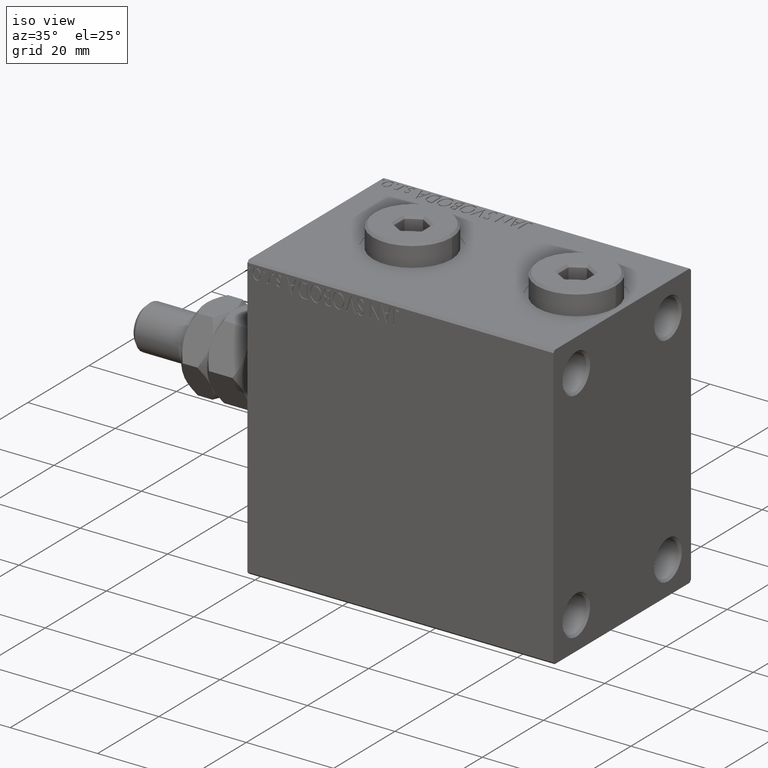
[diagram: clean part render]
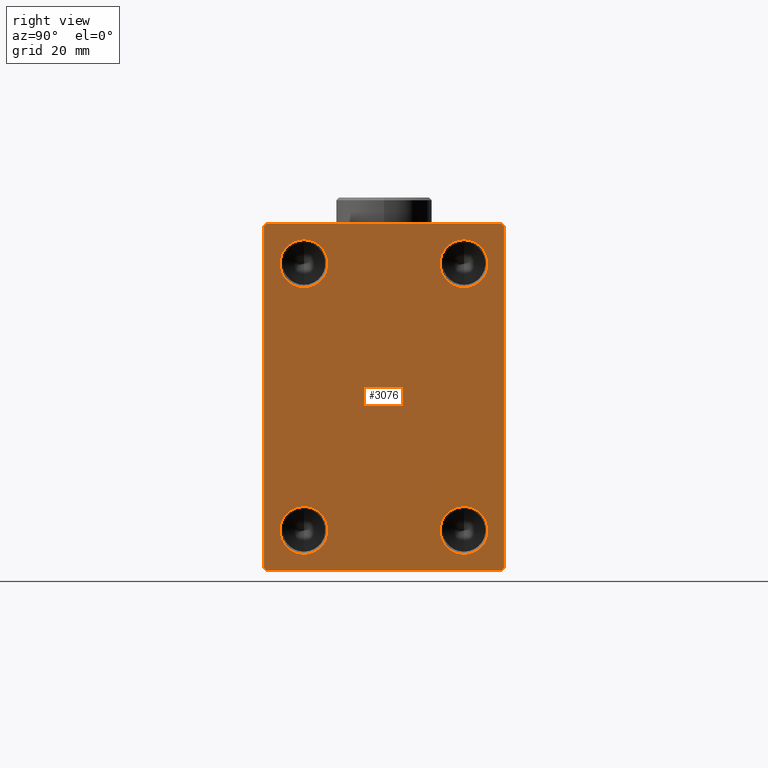
[diagram: tour spotlight — one face highlighted and labeled with its STEP entity id]
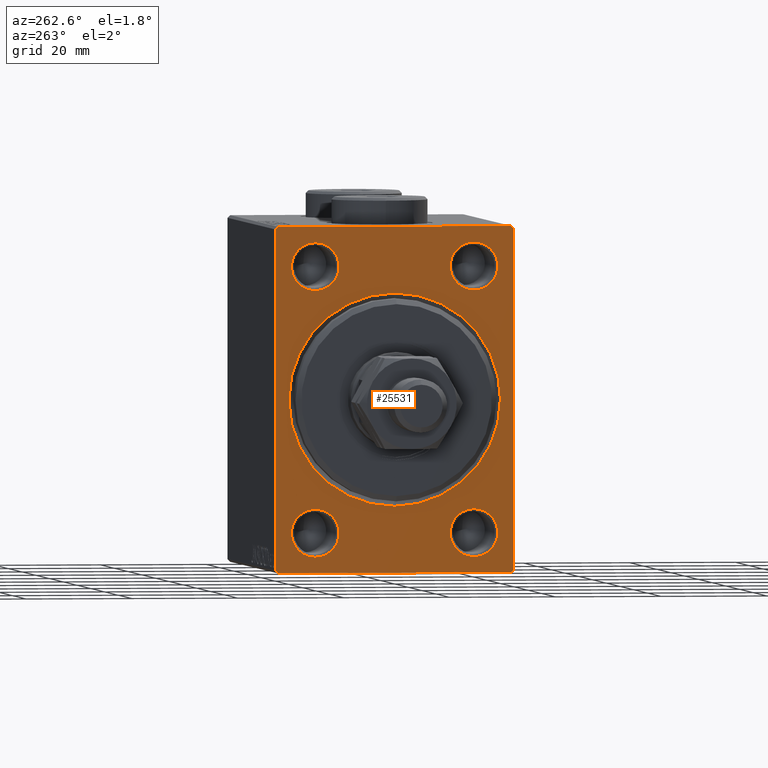
[diagram: tour spotlight — one face highlighted and labeled with its STEP entity id]
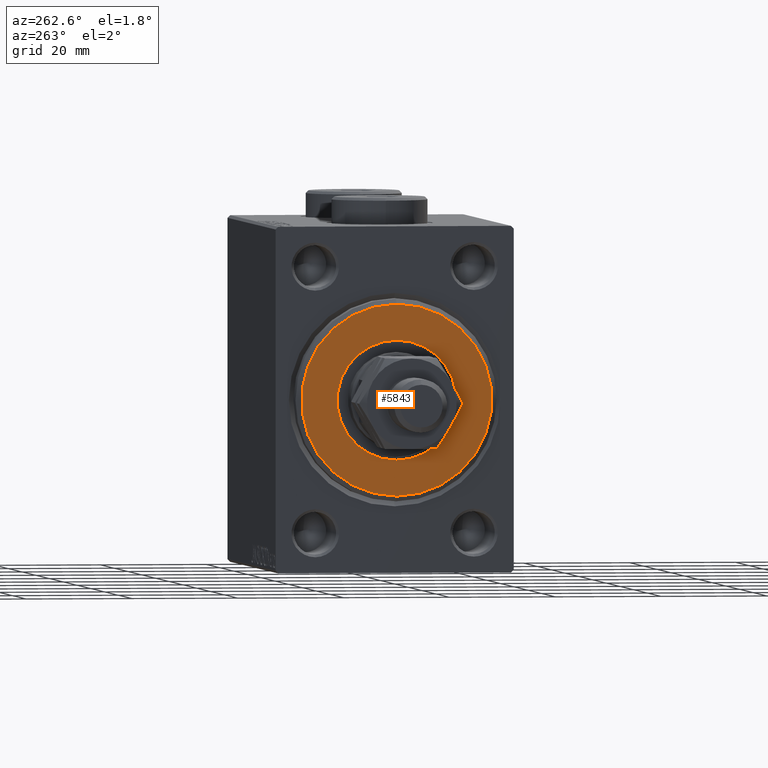
[diagram: tour spotlight — one face highlighted and labeled with its STEP entity id]
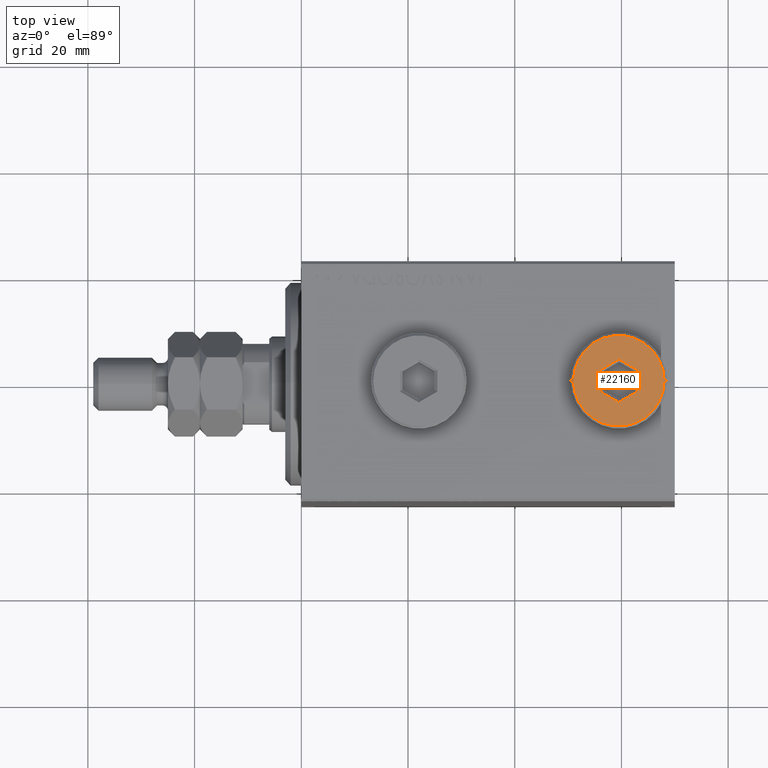
[diagram: tour spotlight — one face highlighted and labeled with its STEP entity id]
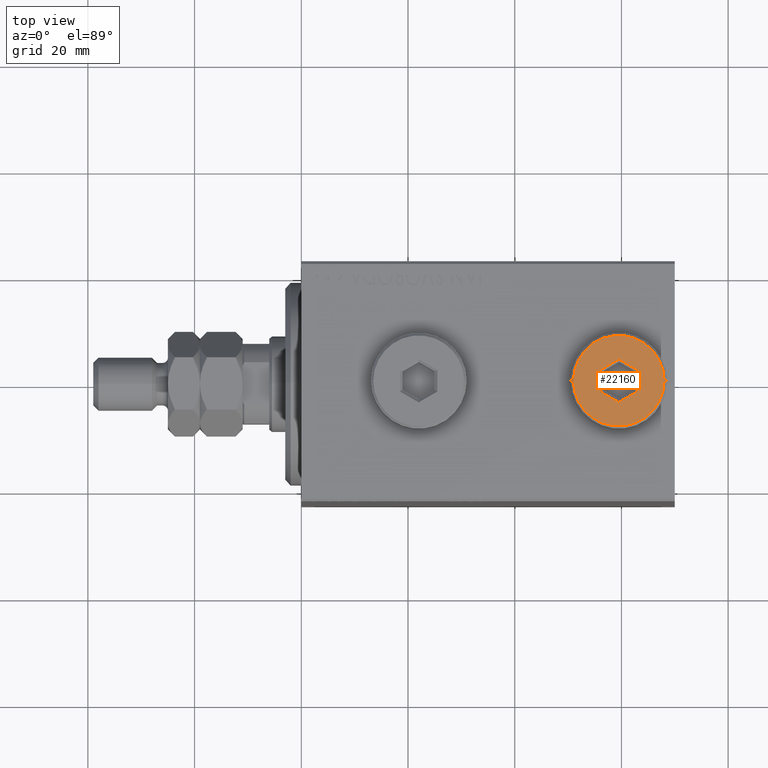
[diagram: tour spotlight — one face highlighted and labeled with its STEP entity id]
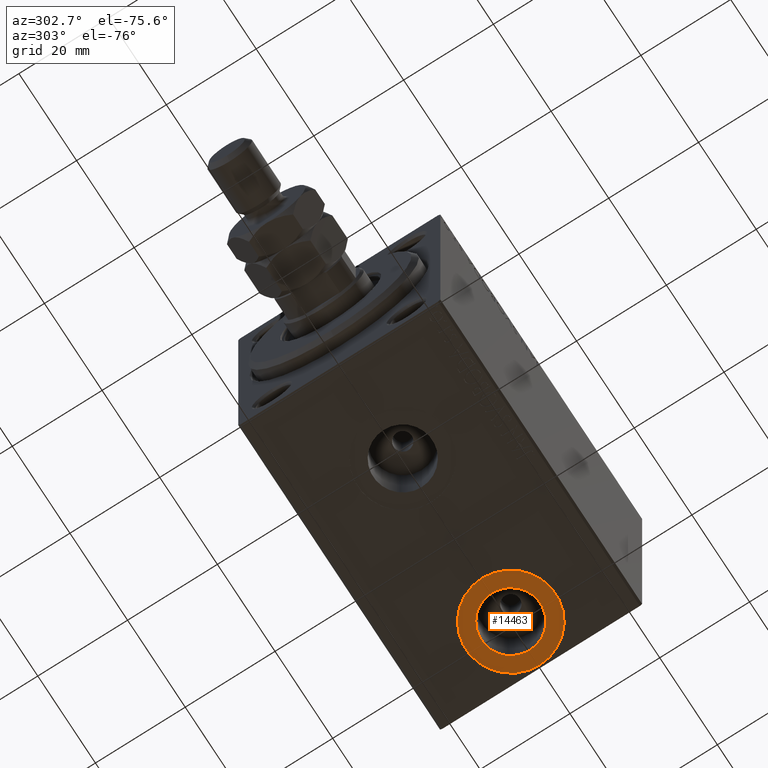
[diagram: tour spotlight — one face highlighted and labeled with its STEP entity id]
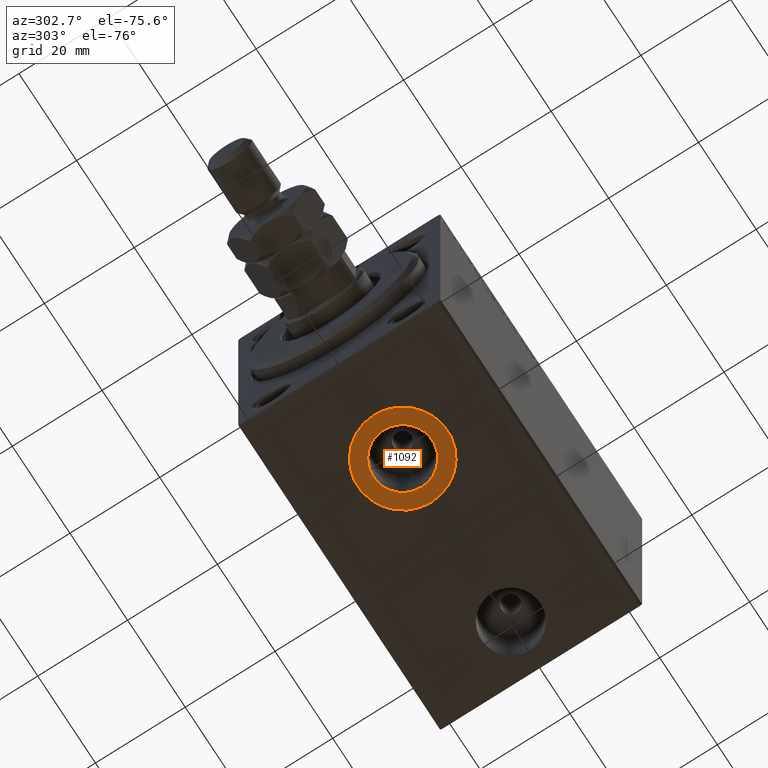
[diagram: tour spotlight — one face highlighted and labeled with its STEP entity id]
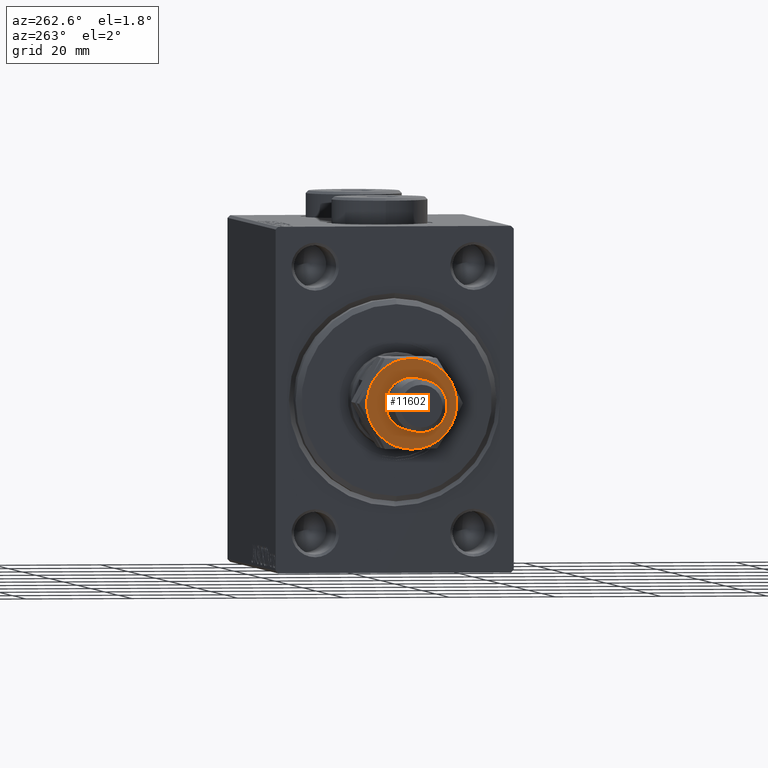
[diagram: tour spotlight — one face highlighted and labeled with its STEP entity id]
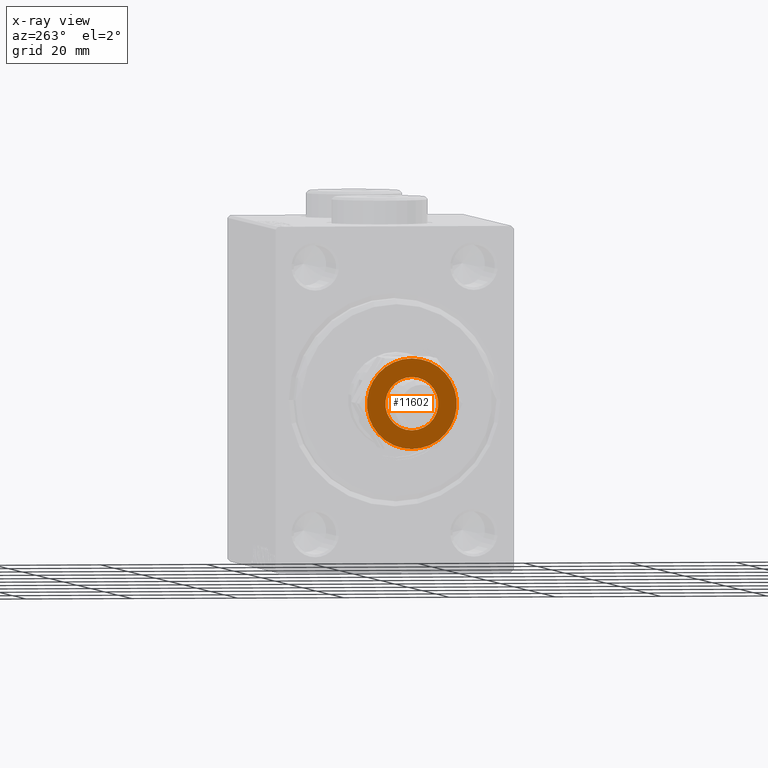
[diagram: x-ray of the same camera — body ghosted, this tour face saturated]
A machine part: a face-by-face anatomy tour. The part has 984 B-rep faces; the first image is the clean iso view, then the 8 largest visible faces are spotlighted one at a time (largest first), each with its STEP entity span.

Face 1 — right view, entity #3076. In plain terms, the highlighted planar face has unit normal (1, 0, 0).
Definition (entity closure, byte-faithful):
#69 = FACE_BOUND ( 'NONE', #28586, .T. ) ;
#295 = DIRECTION ( 'NONE',  ( 1.000000000000000000, 0.000000000000000000, 0.000000000000000000 ) ) ;
#934 = CARTESIAN_POINT ( 'NONE',  ( 70.00000000000000000, 21.99999999999999289, -32.50000000000000711 ) ) ;
#1005 = LINE ( 'NONE', #40830, #25685 ) ;
#1007 = LINE ( 'NONE', #26314, #19560 ) ;
#1270 = AXIS2_PLACEMENT_3D ( 'NONE', #9330, #38397, #2371 ) ;
#1336 = CARTESIAN_POINT ( 'NONE',  ( 70.00000000000000000, -22.49999999999999289, -32.50000000000000711 ) ) ;
#1701 = EDGE_CURVE ( 'NONE', #39068, #5214, #29275, .T. ) ;
#1795 = EDGE_CURVE ( 'NONE', #16673, #46168, #19741, .T. ) ;
#2207 = ORIENTED_EDGE ( 'NONE', *, *, #35198, .F. ) ;
#2371 = DIRECTION ( 'NONE',  ( 0.000000000000000000, 0.000000000000000000, -1.000000000000000000 ) ) ;
#2628 = ORIENTED_EDGE ( 'NONE', *, *, #6473, .T. ) ;
#2652 = CIRCLE ( 'NONE', #9531, 4.499999999999976019 ) ;
#2681 = DIRECTION ( 'NONE',  ( 1.000000000000000000, -0.000000000000000000, -0.000000000000000000 ) ) ;
#2780 = DIRECTION ( 'NONE',  ( 1.000000000000000000, -0.000000000000000000, -0.000000000000000000 ) ) ;
#3076 = ADVANCED_FACE ( 'NONE', ( #43931, #32521, #36325, #69, #14648 ), #25605, .T. ) ;
#3185 = AXIS2_PLACEMENT_3D ( 'NONE', #44091, #25764, #37424 ) ;
#3818 = ORIENTED_EDGE ( 'NONE', *, *, #34433, .T. ) ;
#4112 = CIRCLE ( 'NONE', #35378, 4.499999999999976019 ) ;
#4311 = CIRCLE ( 'NONE', #31020, 4.499999999999976019 ) ;
#5214 = VERTEX_POINT ( 'NONE', #14226 ) ;
#5336 = CARTESIAN_POINT ( 'NONE',  ( 70.00000000000000000, 27.25000000000031264, -27.24999999999955236 ) ) ;
#6285 = CARTESIAN_POINT ( 'NONE',  ( 70.00000000000000000, 15.00000000000000178, 25.00000000000000000 ) ) ;
#6346 = CARTESIAN_POINT ( 'NONE',  ( 70.00000000000000000, -21.99999999999997868, 32.49999999999998579 ) ) ;
#6473 = EDGE_CURVE ( 'NONE', #35402, #33749, #1007, .T. ) ;
#6858 = EDGE_CURVE ( 'NONE', #26647, #27385, #13452, .T. ) ;
#6975 = EDGE_CURVE ( 'NONE', #41217, #35402, #46703, .T. ) ;
#7051 = ORIENTED_EDGE ( 'NONE', *, *, #28356, .T. ) ;
#7474 = CARTESIAN_POINT ( 'NONE',  ( 70.00000000000000000, 0.000000000000000000, 0.000000000000000000 ) ) ;
#7528 = CARTESIAN_POINT ( 'NONE',  ( 70.00000000000000000, -21.99999999999999289, -32.50000000000000711 ) ) ;
#7932 = EDGE_CURVE ( 'NONE', #23317, #16013, #44695, .T. ) ;
#8187 = DIRECTION ( 'NONE',  ( -0.000000000000000000, -0.7071067811865574537, 0.7071067811865376918 ) ) ;
#8292 = ORIENTED_EDGE ( 'NONE', *, *, #17652, .F. ) ;
#8827 = EDGE_LOOP ( 'NONE', ( #13976, #21836 ) ) ;
#9330 = CARTESIAN_POINT ( 'NONE',  ( 70.00000000000000000, -15.00000000000000000, 25.00000000000000000 ) ) ;
#9531 = AXIS2_PLACEMENT_3D ( 'NONE', #20942, #2780, #17362 ) ;
#10273 = DIRECTION ( 'NONE',  ( 0.000000000000000000, 0.000000000000000000, -1.000000000000000000 ) ) ;
#10316 = CARTESIAN_POINT ( 'NONE',  ( 70.00000000000000000, -15.00000000000000000, 20.50000000000003197 ) ) ;
#10386 = EDGE_LOOP ( 'NONE', ( #17221, #37579 ) ) ;
#10806 = CARTESIAN_POINT ( 'NONE',  ( 70.00000000000000000, 21.99999999999998579, 32.49999999999999289 ) ) ;
#10920 = CARTESIAN_POINT ( 'NONE',  ( 70.00000000000000000, -15.00000000000000000, -25.00000000000000000 ) ) ;
#11049 = ORIENTED_EDGE ( 'NONE', *, *, #6975, .T. ) ;
#12120 = VECTOR ( 'NONE', #31101, 999.9999999999998863 ) ;
#12865 = EDGE_CURVE ( 'NONE', #46168, #41217, #45381, .T. ) ;
#12930 = CARTESIAN_POINT ( 'NONE',  ( 70.00000000000000000, -22.49999999999999289, 31.99999999999998579 ) ) ;
#13452 = CIRCLE ( 'NONE', #1270, 4.499999999999976019 ) ;
#13864 = CIRCLE ( 'NONE', #3185, 4.499999999999976019 ) ;
#13976 = ORIENTED_EDGE ( 'NONE', *, *, #40765, .F. ) ;
#14226 = CARTESIAN_POINT ( 'NONE',  ( 70.00000000000000000, -15.00000000000000000, -20.50000000000003197 ) ) ;
#14397 = CARTESIAN_POINT ( 'NONE',  ( 70.00000000000000000, -15.00000000000000000, -29.49999999999997158 ) ) ;
#14648 = FACE_OUTER_BOUND ( 'NONE', #24628, .T. ) ;
#14949 = ORIENTED_EDGE ( 'NONE', *, *, #1795, .T. ) ;
#15147 = LINE ( 'NONE', #22074, #30453 ) ;
#15381 = DIRECTION ( 'NONE',  ( 0.000000000000000000, -1.000000000000000000, -1.541976423090495633E-16 ) ) ;
#15830 = DIRECTION ( 'NONE',  ( 0.000000000000000000, -0.7071067811865474617, -0.7071067811865474617 ) ) ;
#15918 = DIRECTION ( 'NONE',  ( 0.000000000000000000, 1.000000000000000000, 0.000000000000000000 ) ) ;
#16013 = VERTEX_POINT ( 'NONE', #20633 ) ;
#16673 = VERTEX_POINT ( 'NONE', #7528 ) ;
#16798 = AXIS2_PLACEMENT_3D ( 'NONE', #31292, #21019, #10273 ) ;
#16830 = DIRECTION ( 'NONE',  ( 0.000000000000000000, 0.000000000000000000, -1.000000000000000000 ) ) ;
#17221 = ORIENTED_EDGE ( 'NONE', *, *, #18761, .F. ) ;
#17362 = DIRECTION ( 'NONE',  ( 0.000000000000000000, 0.000000000000000000, -1.000000000000000000 ) ) ;
#17652 = EDGE_CURVE ( 'NONE', #27385, #26647, #4112, .T. ) ;
#18590 = CARTESIAN_POINT ( 'NONE',  ( 70.00000000000000000, 22.50000000000000711, -32.50000000000000711 ) ) ;
#18733 = LINE ( 'NONE', #40633, #38905 ) ;
#18761 = EDGE_CURVE ( 'NONE', #5214, #39068, #2652, .T. ) ;
#19210 = DIRECTION ( 'NONE',  ( -0.000000000000000000, 0.7071067811865524577, -0.7071067811865426878 ) ) ;
#19534 = CARTESIAN_POINT ( 'NONE',  ( 70.00000000000000000, -15.00000000000000000, 25.00000000000000000 ) ) ;
#19560 = VECTOR ( 'NONE', #8187, 999.9999999999998863 ) ;
#19741 = LINE ( 'NONE', #1336, #44489 ) ;
#20228 = CARTESIAN_POINT ( 'NONE',  ( 70.00000000000000000, 22.50000000000000711, -31.99999999999999289 ) ) ;
#20633 = CARTESIAN_POINT ( 'NONE',  ( 70.00000000000000000, 15.00000000000000178, -29.49999999999997513 ) ) ;
#20942 = CARTESIAN_POINT ( 'NONE',  ( 70.00000000000000000, -15.00000000000000000, -25.00000000000000000 ) ) ;
#20966 = CARTESIAN_POINT ( 'NONE',  ( 70.00000000000000000, 15.00000000000000178, 20.50000000000002842 ) ) ;
#21019 = DIRECTION ( 'NONE',  ( 1.000000000000000000, -0.000000000000000000, -0.000000000000000000 ) ) ;
#21836 = ORIENTED_EDGE ( 'NONE', *, *, #23407, .F. ) ;
#22074 = CARTESIAN_POINT ( 'NONE',  ( 70.00000000000000000, 22.50000000000000000, 32.49999999999999289 ) ) ;
#23317 = VERTEX_POINT ( 'NONE', #30395 ) ;
#23407 = EDGE_CURVE ( 'NONE', #27078, #24866, #4311, .T. ) ;
#23801 = ORIENTED_EDGE ( 'NONE', *, *, #7932, .F. ) ;
#24201 = LINE ( 'NONE', #38726, #37900 ) ;
#24342 = CARTESIAN_POINT ( 'NONE',  ( 70.00000000000000000, 15.00000000000000178, 29.49999999999997513 ) ) ;
#24484 = CARTESIAN_POINT ( 'NONE',  ( 70.00000000000000000, -15.00000000000000000, 29.49999999999997158 ) ) ;
#24533 = EDGE_CURVE ( 'NONE', #34235, #45258, #1005, .T. ) ;
#24628 = EDGE_LOOP ( 'NONE', ( #3818, #25544, #7051, #45020, #14949, #26917, #11049, #2628 ) ) ;
#24866 = VERTEX_POINT ( 'NONE', #24342 ) ;
#25544 = ORIENTED_EDGE ( 'NONE', *, *, #24533, .T. ) ;
#25605 = PLANE ( 'NONE',  #43741 ) ;
#25685 = VECTOR ( 'NONE', #15830, 1000.000000000000114 ) ;
#25764 = DIRECTION ( 'NONE',  ( 1.000000000000000000, -0.000000000000000000, -0.000000000000000000 ) ) ;
#25847 = DIRECTION ( 'NONE',  ( 0.000000000000000000, 0.000000000000000000, -1.000000000000000000 ) ) ;
#26197 = DIRECTION ( 'NONE',  ( 0.000000000000000000, 0.000000000000000000, -1.000000000000000000 ) ) ;
#26314 = CARTESIAN_POINT ( 'NONE',  ( 70.00000000000000000, 27.24999999999968026, 27.25000000000044054 ) ) ;
#26647 = VERTEX_POINT ( 'NONE', #10316 ) ;
#26917 = ORIENTED_EDGE ( 'NONE', *, *, #12865, .T. ) ;
#26920 = DIRECTION ( 'NONE',  ( 1.000000000000000000, -0.000000000000000000, -0.000000000000000000 ) ) ;
#27078 = VERTEX_POINT ( 'NONE', #20966 ) ;
#27385 = VERTEX_POINT ( 'NONE', #24484 ) ;
#28356 = EDGE_CURVE ( 'NONE', #45258, #34179, #24201, .T. ) ;
#28459 = DIRECTION ( 'NONE',  ( 0.000000000000000000, 0.000000000000000000, -1.000000000000000000 ) ) ;
#28586 = EDGE_LOOP ( 'NONE', ( #23801, #2207 ) ) ;
#29275 = CIRCLE ( 'NONE', #43712, 4.499999999999976019 ) ;
#29960 = DIRECTION ( 'NONE',  ( 1.000000000000000000, -0.000000000000000000, -0.000000000000000000 ) ) ;
#30395 = CARTESIAN_POINT ( 'NONE',  ( 70.00000000000000000, 15.00000000000000178, -20.50000000000002842 ) ) ;
#30453 = VECTOR ( 'NONE', #15381, 1000.000000000000000 ) ;
#30456 = DIRECTION ( 'NONE',  ( 0.000000000000000000, 0.000000000000000000, -1.000000000000000000 ) ) ;
#31020 = AXIS2_PLACEMENT_3D ( 'NONE', #6285, #2681, #28459 ) ;
#31101 = DIRECTION ( 'NONE',  ( -0.000000000000000000, 0.7071067811865376918, 0.7071067811865574537 ) ) ;
#31102 = EDGE_LOOP ( 'NONE', ( #8292, #44726 ) ) ;
#31292 = CARTESIAN_POINT ( 'NONE',  ( 70.00000000000000000, 15.00000000000000178, -25.00000000000000000 ) ) ;
#32443 = CARTESIAN_POINT ( 'NONE',  ( 70.00000000000000000, 22.50000000000000000, 31.99999999999999289 ) ) ;
#32521 = FACE_BOUND ( 'NONE', #31102, .T. ) ;
#33749 = VERTEX_POINT ( 'NONE', #10806 ) ;
#34179 = VERTEX_POINT ( 'NONE', #34985 ) ;
#34235 = VERTEX_POINT ( 'NONE', #6346 ) ;
#34433 = EDGE_CURVE ( 'NONE', #33749, #34235, #15147, .T. ) ;
#34801 = VECTOR ( 'NONE', #47170, 1000.000000000000000 ) ;
#34985 = CARTESIAN_POINT ( 'NONE',  ( 70.00000000000000000, -22.49999999999999289, -32.00000000000001421 ) ) ;
#35198 = EDGE_CURVE ( 'NONE', #16013, #23317, #40316, .T. ) ;
#35378 = AXIS2_PLACEMENT_3D ( 'NONE', #19534, #26920, #26197 ) ;
#35402 = VERTEX_POINT ( 'NONE', #32443 ) ;
#36325 = FACE_BOUND ( 'NONE', #10386, .T. ) ;
#37082 = AXIS2_PLACEMENT_3D ( 'NONE', #44963, #29960, #44472 ) ;
#37424 = DIRECTION ( 'NONE',  ( 0.000000000000000000, 0.000000000000000000, -1.000000000000000000 ) ) ;
#37579 = ORIENTED_EDGE ( 'NONE', *, *, #1701, .F. ) ;
#37900 = VECTOR ( 'NONE', #16830, 1000.000000000000000 ) ;
#38397 = DIRECTION ( 'NONE',  ( 1.000000000000000000, -0.000000000000000000, -0.000000000000000000 ) ) ;
#38726 = CARTESIAN_POINT ( 'NONE',  ( 70.00000000000000000, -22.49999999999999289, 32.49999999999998579 ) ) ;
#38839 = EDGE_CURVE ( 'NONE', #34179, #16673, #18733, .T. ) ;
#38905 = VECTOR ( 'NONE', #19210, 1000.000000000000000 ) ;
#39068 = VERTEX_POINT ( 'NONE', #14397 ) ;
#39973 = DIRECTION ( 'NONE',  ( 1.000000000000000000, -0.000000000000000000, -0.000000000000000000 ) ) ;
#40316 = CIRCLE ( 'NONE', #16798, 4.499999999999976019 ) ;
#40633 = CARTESIAN_POINT ( 'NONE',  ( 70.00000000000000000, -27.24999999999984368, -27.25000000000022027 ) ) ;
#40765 = EDGE_CURVE ( 'NONE', #24866, #27078, #13864, .T. ) ;
#40830 = CARTESIAN_POINT ( 'NONE',  ( 70.00000000000000000, -27.24999999999998934, 27.24999999999998934 ) ) ;
#41217 = VERTEX_POINT ( 'NONE', #20228 ) ;
#43712 = AXIS2_PLACEMENT_3D ( 'NONE', #10920, #39973, #30456 ) ;
#43741 = AXIS2_PLACEMENT_3D ( 'NONE', #7474, #295, #25847 ) ;
#43931 = FACE_BOUND ( 'NONE', #8827, .T. ) ;
#44091 = CARTESIAN_POINT ( 'NONE',  ( 70.00000000000000000, 15.00000000000000178, 25.00000000000000000 ) ) ;
#44472 = DIRECTION ( 'NONE',  ( 0.000000000000000000, 0.000000000000000000, -1.000000000000000000 ) ) ;
#44489 = VECTOR ( 'NONE', #15918, 1000.000000000000000 ) ;
#44695 = CIRCLE ( 'NONE', #37082, 4.499999999999976019 ) ;
#44726 = ORIENTED_EDGE ( 'NONE', *, *, #6858, .F. ) ;
#44963 = CARTESIAN_POINT ( 'NONE',  ( 70.00000000000000000, 15.00000000000000178, -25.00000000000000000 ) ) ;
#45020 = ORIENTED_EDGE ( 'NONE', *, *, #38839, .T. ) ;
#45258 = VERTEX_POINT ( 'NONE', #12930 ) ;
#45381 = LINE ( 'NONE', #5336, #12120 ) ;
#46168 = VERTEX_POINT ( 'NONE', #934 ) ;
#46703 = LINE ( 'NONE', #18590, #34801 ) ;
#47170 = DIRECTION ( 'NONE',  ( 0.000000000000000000, -1.067522139062650425E-16, 1.000000000000000000 ) ) ;

Face 2 — auxiliary view, entity #25531. In plain terms, the highlighted planar face has unit normal (1, 0, 0).
Definition (entity closure, byte-faithful):
#86 = VECTOR ( 'NONE', #29468, 1000.000000000000000 ) ;
#356 = CARTESIAN_POINT ( 'NONE',  ( 0.000000000000000000, 0.000000000000000000, 0.000000000000000000 ) ) ;
#445 = AXIS2_PLACEMENT_3D ( 'NONE', #11992, #34414, #11523 ) ;
#1093 = CARTESIAN_POINT ( 'NONE',  ( 0.000000000000000000, -21.99999999999999289, -32.50000000000000711 ) ) ;
#1355 = EDGE_CURVE ( 'NONE', #11508, #25758, #38424, .T. ) ;
#1564 = CARTESIAN_POINT ( 'NONE',  ( 0.000000000000000000, -22.49999999999999289, -32.00000000000001421 ) ) ;
#1876 = CARTESIAN_POINT ( 'NONE',  ( 0.000000000000000000, 15.00000000000000178, -29.49999999999997868 ) ) ;
#2151 = AXIS2_PLACEMENT_3D ( 'NONE', #45380, #27285, #41805 ) ;
#2658 = EDGE_LOOP ( 'NONE', ( #6873, #41692 ) ) ;
#2779 = ORIENTED_EDGE ( 'NONE', *, *, #26564, .T. ) ;
#2811 = EDGE_CURVE ( 'NONE', #27133, #34102, #44527, .T. ) ;
#3353 = PLANE ( 'NONE',  #46993 ) ;
#3464 = DIRECTION ( 'NONE',  ( 0.000000000000000000, 0.000000000000000000, -1.000000000000000000 ) ) ;
#3526 = CIRCLE ( 'NONE', #8148, 20.00000000000000355 ) ;
#3701 = CARTESIAN_POINT ( 'NONE',  ( 0.000000000000000000, -15.00000000000000000, -29.49999999999997868 ) ) ;
#3921 = LINE ( 'NONE', #18514, #24530 ) ;
#3929 = LINE ( 'NONE', #18520, #86 ) ;
#4221 = DIRECTION ( 'NONE',  ( 1.000000000000000000, 0.000000000000000000, 0.000000000000000000 ) ) ;
#5194 = EDGE_LOOP ( 'NONE', ( #36020, #27711 ) ) ;
#5576 = EDGE_CURVE ( 'NONE', #25758, #11508, #14944, .T. ) ;
#5662 = CARTESIAN_POINT ( 'NONE',  ( 0.000000000000000000, 0.000000000000000000, 20.00000000000000355 ) ) ;
#5726 = AXIS2_PLACEMENT_3D ( 'NONE', #8061, #4221, #44515 ) ;
#5767 = VERTEX_POINT ( 'NONE', #26425 ) ;
#5881 = VERTEX_POINT ( 'NONE', #42136 ) ;
#5912 = VECTOR ( 'NONE', #7880, 1000.000000000000114 ) ;
#6001 = VERTEX_POINT ( 'NONE', #43531 ) ;
#6078 = EDGE_CURVE ( 'NONE', #41126, #16465, #14199, .T. ) ;
#6563 = AXIS2_PLACEMENT_3D ( 'NONE', #356, #36157, #3464 ) ;
#6873 = ORIENTED_EDGE ( 'NONE', *, *, #34558, .T. ) ;
#7413 = CARTESIAN_POINT ( 'NONE',  ( 0.000000000000000000, 15.00000000000000178, 29.49999999999997868 ) ) ;
#7421 = FACE_OUTER_BOUND ( 'NONE', #34572, .T. ) ;
#7448 = VERTEX_POINT ( 'NONE', #40038 ) ;
#7681 = DIRECTION ( 'NONE',  ( 1.000000000000000000, 0.000000000000000000, 0.000000000000000000 ) ) ;
#7880 = DIRECTION ( 'NONE',  ( -0.000000000000000000, 0.7071067811865474617, 0.7071067811865474617 ) ) ;
#7900 = DIRECTION ( 'NONE',  ( 0.000000000000000000, 0.000000000000000000, -1.000000000000000000 ) ) ;
#8061 = CARTESIAN_POINT ( 'NONE',  ( 0.000000000000000000, 15.00000000000000178, -25.00000000000000000 ) ) ;
#8148 = AXIS2_PLACEMENT_3D ( 'NONE', #19812, #7681, #14842 ) ;
#8376 = EDGE_CURVE ( 'NONE', #10614, #5881, #22641, .T. ) ;
#8934 = CARTESIAN_POINT ( 'NONE',  ( 0.000000000000000000, 15.00000000000000178, -25.00000000000000000 ) ) ;
#8996 = CIRCLE ( 'NONE', #15073, 4.499999999999976019 ) ;
#9182 = DIRECTION ( 'NONE',  ( 0.000000000000000000, 0.000000000000000000, -1.000000000000000000 ) ) ;
#9348 = ORIENTED_EDGE ( 'NONE', *, *, #20198, .T. ) ;
#9390 = EDGE_LOOP ( 'NONE', ( #46878, #27943 ) ) ;
#9522 = LINE ( 'NONE', #28342, #33190 ) ;
#10337 = LINE ( 'NONE', #35615, #12026 ) ;
#10614 = VERTEX_POINT ( 'NONE', #3701 ) ;
#10707 = EDGE_CURVE ( 'NONE', #11834, #24779, #8996, .T. ) ;
#10761 = CARTESIAN_POINT ( 'NONE',  ( 0.000000000000000000, 2.449293598294706907E-15, -20.00000000000000355 ) ) ;
#10903 = CARTESIAN_POINT ( 'NONE',  ( 0.000000000000000000, -15.00000000000000000, 20.50000000000002487 ) ) ;
#10998 = DIRECTION ( 'NONE',  ( 0.000000000000000000, 1.000000000000000000, 0.000000000000000000 ) ) ;
#11039 = EDGE_LOOP ( 'NONE', ( #11260, #29348 ) ) ;
#11260 = ORIENTED_EDGE ( 'NONE', *, *, #25878, .T. ) ;
#11470 = CARTESIAN_POINT ( 'NONE',  ( 0.000000000000000000, -22.49999999999999289, -32.50000000000000711 ) ) ;
#11483 = FACE_BOUND ( 'NONE', #22768, .T. ) ;
#11508 = VERTEX_POINT ( 'NONE', #10903 ) ;
#11523 = DIRECTION ( 'NONE',  ( 0.000000000000000000, 0.000000000000000000, -1.000000000000000000 ) ) ;
#11696 = CARTESIAN_POINT ( 'NONE',  ( 0.000000000000000000, -22.49999999999999289, 31.99999999999998579 ) ) ;
#11834 = VERTEX_POINT ( 'NONE', #45612 ) ;
#11992 = CARTESIAN_POINT ( 'NONE',  ( 0.000000000000000000, -15.00000000000000000, 25.00000000000000000 ) ) ;
#12006 = ORIENTED_EDGE ( 'NONE', *, *, #41521, .F. ) ;
#12026 = VECTOR ( 'NONE', #17742, 1000.000000000000000 ) ;
#12549 = AXIS2_PLACEMENT_3D ( 'NONE', #42908, #17899, #47185 ) ;
#13471 = ORIENTED_EDGE ( 'NONE', *, *, #19659, .T. ) ;
#14199 = CIRCLE ( 'NONE', #6563, 20.00000000000000355 ) ;
#14842 = DIRECTION ( 'NONE',  ( 0.000000000000000000, 0.000000000000000000, -1.000000000000000000 ) ) ;
#14916 = DIRECTION ( 'NONE',  ( 0.000000000000000000, 0.000000000000000000, -1.000000000000000000 ) ) ;
#14944 = CIRCLE ( 'NONE', #445, 4.499999999999976019 ) ;
#15073 = AXIS2_PLACEMENT_3D ( 'NONE', #20594, #31319, #38451 ) ;
#15279 = LINE ( 'NONE', #11696, #5912 ) ;
#15826 = ORIENTED_EDGE ( 'NONE', *, *, #28998, .T. ) ;
#16465 = VERTEX_POINT ( 'NONE', #10761 ) ;
#16651 = ORIENTED_EDGE ( 'NONE', *, *, #30327, .F. ) ;
#16822 = DIRECTION ( 'NONE',  ( 1.000000000000000000, 0.000000000000000000, 0.000000000000000000 ) ) ;
#17713 = FACE_BOUND ( 'NONE', #5194, .T. ) ;
#17742 = DIRECTION ( 'NONE',  ( 0.000000000000000000, -1.000000000000000000, -1.541976423090495633E-16 ) ) ;
#17899 = DIRECTION ( 'NONE',  ( 1.000000000000000000, 0.000000000000000000, 0.000000000000000000 ) ) ;
#17906 = VERTEX_POINT ( 'NONE', #32131 ) ;
#18514 = CARTESIAN_POINT ( 'NONE',  ( 0.000000000000000000, -22.49999999999999289, 32.49999999999998579 ) ) ;
#18520 = CARTESIAN_POINT ( 'NONE',  ( 0.000000000000000000, 22.50000000000000711, -32.50000000000000711 ) ) ;
#18858 = CARTESIAN_POINT ( 'NONE',  ( 0.000000000000000000, 21.99999999999998579, 32.49999999999999289 ) ) ;
#19659 = EDGE_CURVE ( 'NONE', #39305, #26221, #44483, .T. ) ;
#19723 = VECTOR ( 'NONE', #10998, 1000.000000000000000 ) ;
#19791 = CARTESIAN_POINT ( 'NONE',  ( 0.000000000000000000, 15.00000000000000178, 25.00000000000000000 ) ) ;
#19812 = CARTESIAN_POINT ( 'NONE',  ( 0.000000000000000000, 0.000000000000000000, 0.000000000000000000 ) ) ;
#20198 = EDGE_CURVE ( 'NONE', #35807, #7448, #9522, .T. ) ;
#20594 = CARTESIAN_POINT ( 'NONE',  ( 0.000000000000000000, 15.00000000000000178, 25.00000000000000000 ) ) ;
#21754 = FACE_BOUND ( 'NONE', #11039, .T. ) ;
#22586 = DIRECTION ( 'NONE',  ( -0.000000000000000000, -0.7071067811865524577, 0.7071067811865426878 ) ) ;
#22641 = CIRCLE ( 'NONE', #36337, 4.499999999999976019 ) ;
#22768 = EDGE_LOOP ( 'NONE', ( #2779, #30676 ) ) ;
#23111 = DIRECTION ( 'NONE',  ( 0.000000000000000000, 0.000000000000000000, -1.000000000000000000 ) ) ;
#23533 = EDGE_CURVE ( 'NONE', #16465, #41126, #3526, .T. ) ;
#24142 = CARTESIAN_POINT ( 'NONE',  ( 0.000000000000000000, -21.99999999999999289, -32.50000000000000711 ) ) ;
#24253 = VERTEX_POINT ( 'NONE', #31354 ) ;
#24310 = DIRECTION ( 'NONE',  ( 0.000000000000000000, -0.7071067811865376918, -0.7071067811865574537 ) ) ;
#24530 = VECTOR ( 'NONE', #14916, 1000.000000000000000 ) ;
#24779 = VERTEX_POINT ( 'NONE', #7413 ) ;
#25094 = FACE_BOUND ( 'NONE', #9390, .T. ) ;
#25531 = ADVANCED_FACE ( 'NONE', ( #25094, #11483, #17713, #21754, #26032, #7421 ), #3353, .F. ) ;
#25723 = CIRCLE ( 'NONE', #34097, 4.499999999999976019 ) ;
#25758 = VERTEX_POINT ( 'NONE', #38179 ) ;
#25878 = EDGE_CURVE ( 'NONE', #24779, #11834, #25723, .T. ) ;
#26032 = FACE_BOUND ( 'NONE', #2658, .T. ) ;
#26182 = CARTESIAN_POINT ( 'NONE',  ( 0.000000000000000000, 22.50000000000000711, -31.99999999999999289 ) ) ;
#26221 = VERTEX_POINT ( 'NONE', #1564 ) ;
#26425 = CARTESIAN_POINT ( 'NONE',  ( 0.000000000000000000, 22.50000000000000000, 31.99999999999999289 ) ) ;
#26564 = EDGE_CURVE ( 'NONE', #5881, #10614, #31845, .T. ) ;
#27133 = VERTEX_POINT ( 'NONE', #1876 ) ;
#27285 = DIRECTION ( 'NONE',  ( 1.000000000000000000, 0.000000000000000000, 0.000000000000000000 ) ) ;
#27711 = ORIENTED_EDGE ( 'NONE', *, *, #1355, .T. ) ;
#27943 = ORIENTED_EDGE ( 'NONE', *, *, #23533, .T. ) ;
#28342 = CARTESIAN_POINT ( 'NONE',  ( 0.000000000000000000, 22.50000000000000711, -31.99999999999999289 ) ) ;
#28857 = DIRECTION ( 'NONE',  ( 0.000000000000000000, 0.000000000000000000, -1.000000000000000000 ) ) ;
#28889 = EDGE_CURVE ( 'NONE', #17906, #5767, #30050, .T. ) ;
#28998 = EDGE_CURVE ( 'NONE', #6001, #24253, #15279, .T. ) ;
#29348 = ORIENTED_EDGE ( 'NONE', *, *, #10707, .T. ) ;
#29468 = DIRECTION ( 'NONE',  ( 0.000000000000000000, -1.067522139062650425E-16, 1.000000000000000000 ) ) ;
#30050 = LINE ( 'NONE', #18858, #43959 ) ;
#30327 = EDGE_CURVE ( 'NONE', #17906, #24253, #10337, .T. ) ;
#30676 = ORIENTED_EDGE ( 'NONE', *, *, #8376, .T. ) ;
#30914 = VECTOR ( 'NONE', #22586, 1000.000000000000000 ) ;
#30975 = ORIENTED_EDGE ( 'NONE', *, *, #28889, .T. ) ;
#31319 = DIRECTION ( 'NONE',  ( 1.000000000000000000, 0.000000000000000000, 0.000000000000000000 ) ) ;
#31354 = CARTESIAN_POINT ( 'NONE',  ( 0.000000000000000000, -21.99999999999997868, 32.49999999999998579 ) ) ;
#31585 = EDGE_CURVE ( 'NONE', #39305, #7448, #32925, .T. ) ;
#31845 = CIRCLE ( 'NONE', #2151, 4.499999999999976019 ) ;
#32131 = CARTESIAN_POINT ( 'NONE',  ( 0.000000000000000000, 21.99999999999998579, 32.49999999999999289 ) ) ;
#32925 = LINE ( 'NONE', #11470, #19723 ) ;
#33170 = CARTESIAN_POINT ( 'NONE',  ( 0.000000000000000000, 0.000000000000000000, 0.000000000000000000 ) ) ;
#33190 = VECTOR ( 'NONE', #24310, 999.9999999999998863 ) ;
#33504 = CIRCLE ( 'NONE', #41872, 4.499999999999976019 ) ;
#33561 = CARTESIAN_POINT ( 'NONE',  ( 0.000000000000000000, 15.00000000000000178, -20.50000000000002487 ) ) ;
#34072 = DIRECTION ( 'NONE',  ( 1.000000000000000000, 0.000000000000000000, 0.000000000000000000 ) ) ;
#34097 = AXIS2_PLACEMENT_3D ( 'NONE', #19791, #34072, #23111 ) ;
#34102 = VERTEX_POINT ( 'NONE', #33561 ) ;
#34414 = DIRECTION ( 'NONE',  ( 1.000000000000000000, 0.000000000000000000, 0.000000000000000000 ) ) ;
#34558 = EDGE_CURVE ( 'NONE', #34102, #27133, #33504, .T. ) ;
#34572 = EDGE_LOOP ( 'NONE', ( #12006, #15826, #16651, #30975, #42174, #9348, #46125, #13471 ) ) ;
#35615 = CARTESIAN_POINT ( 'NONE',  ( 0.000000000000000000, 22.50000000000000000, 32.49999999999999289 ) ) ;
#35807 = VERTEX_POINT ( 'NONE', #26182 ) ;
#36020 = ORIENTED_EDGE ( 'NONE', *, *, #5576, .T. ) ;
#36157 = DIRECTION ( 'NONE',  ( 1.000000000000000000, 0.000000000000000000, 0.000000000000000000 ) ) ;
#36337 = AXIS2_PLACEMENT_3D ( 'NONE', #42897, #46711, #28857 ) ;
#38179 = CARTESIAN_POINT ( 'NONE',  ( 0.000000000000000000, -15.00000000000000000, 29.49999999999997868 ) ) ;
#38424 = CIRCLE ( 'NONE', #12549, 4.499999999999976019 ) ;
#38451 = DIRECTION ( 'NONE',  ( 0.000000000000000000, 0.000000000000000000, -1.000000000000000000 ) ) ;
#39305 = VERTEX_POINT ( 'NONE', #24142 ) ;
#39621 = EDGE_CURVE ( 'NONE', #35807, #5767, #3929, .T. ) ;
#40038 = CARTESIAN_POINT ( 'NONE',  ( 0.000000000000000000, 21.99999999999999289, -32.50000000000000711 ) ) ;
#41126 = VERTEX_POINT ( 'NONE', #5662 ) ;
#41521 = EDGE_CURVE ( 'NONE', #6001, #26221, #3921, .T. ) ;
#41692 = ORIENTED_EDGE ( 'NONE', *, *, #2811, .T. ) ;
#41805 = DIRECTION ( 'NONE',  ( 0.000000000000000000, 0.000000000000000000, -1.000000000000000000 ) ) ;
#41872 = AXIS2_PLACEMENT_3D ( 'NONE', #8934, #16822, #9182 ) ;
#42136 = CARTESIAN_POINT ( 'NONE',  ( 0.000000000000000000, -15.00000000000000000, -20.50000000000002487 ) ) ;
#42174 = ORIENTED_EDGE ( 'NONE', *, *, #39621, .F. ) ;
#42897 = CARTESIAN_POINT ( 'NONE',  ( 0.000000000000000000, -15.00000000000000000, -25.00000000000000000 ) ) ;
#42908 = CARTESIAN_POINT ( 'NONE',  ( 0.000000000000000000, -15.00000000000000000, 25.00000000000000000 ) ) ;
#43531 = CARTESIAN_POINT ( 'NONE',  ( 0.000000000000000000, -22.49999999999999289, 31.99999999999998579 ) ) ;
#43959 = VECTOR ( 'NONE', #44334, 999.9999999999998863 ) ;
#44334 = DIRECTION ( 'NONE',  ( -0.000000000000000000, 0.7071067811865574537, -0.7071067811865376918 ) ) ;
#44483 = LINE ( 'NONE', #1093, #30914 ) ;
#44515 = DIRECTION ( 'NONE',  ( 0.000000000000000000, 0.000000000000000000, -1.000000000000000000 ) ) ;
#44527 = CIRCLE ( 'NONE', #5726, 4.499999999999976019 ) ;
#45380 = CARTESIAN_POINT ( 'NONE',  ( 0.000000000000000000, -15.00000000000000000, -25.00000000000000000 ) ) ;
#45612 = CARTESIAN_POINT ( 'NONE',  ( 0.000000000000000000, 15.00000000000000178, 20.50000000000002487 ) ) ;
#46125 = ORIENTED_EDGE ( 'NONE', *, *, #31585, .F. ) ;
#46711 = DIRECTION ( 'NONE',  ( 1.000000000000000000, 0.000000000000000000, 0.000000000000000000 ) ) ;
#46878 = ORIENTED_EDGE ( 'NONE', *, *, #6078, .T. ) ;
#46989 = DIRECTION ( 'NONE',  ( 1.000000000000000000, 0.000000000000000000, 0.000000000000000000 ) ) ;
#46993 = AXIS2_PLACEMENT_3D ( 'NONE', #33170, #46989, #7900 ) ;
#47185 = DIRECTION ( 'NONE',  ( 0.000000000000000000, 0.000000000000000000, -1.000000000000000000 ) ) ;

Face 3 — auxiliary view, entity #5843. In plain terms, the highlighted planar face has unit normal (-1, 0, 0).
Definition (entity closure, byte-faithful):
#1359 = VERTEX_POINT ( 'NONE', #43383 ) ;
#1432 = ORIENTED_EDGE ( 'NONE', *, *, #26695, .F. ) ;
#1630 = DIRECTION ( 'NONE',  ( 1.000000000000000000, 0.000000000000000000, 0.000000000000000000 ) ) ;
#1861 = DIRECTION ( 'NONE',  ( 0.000000000000000000, 0.000000000000000000, -1.000000000000000000 ) ) ;
#5257 = AXIS2_PLACEMENT_3D ( 'NONE', #19859, #41986, #34385 ) ;
#5450 = CARTESIAN_POINT ( 'NONE',  ( 3.000000000000000000, 0.000000000000000000, 0.000000000000000000 ) ) ;
#5843 = ADVANCED_FACE ( 'NONE', ( #15227, #11177 ), #8305, .T. ) ;
#6492 = DIRECTION ( 'NONE',  ( 1.000000000000000000, -0.000000000000000000, 0.000000000000000000 ) ) ;
#6727 = CARTESIAN_POINT ( 'NONE',  ( 3.000000000000000000, 0.000000000000000000, 0.000000000000000000 ) ) ;
#7423 = CARTESIAN_POINT ( 'NONE',  ( 3.000000000000000000, 0.000000000000000000, -11.25000000000000178 ) ) ;
#8305 = PLANE ( 'NONE',  #31692 ) ;
#9067 = AXIS2_PLACEMENT_3D ( 'NONE', #5450, #20025, #1861 ) ;
#11177 = FACE_BOUND ( 'NONE', #41229, .T. ) ;
#12264 = EDGE_CURVE ( 'NONE', #44173, #1359, #26582, .T. ) ;
#12389 = DIRECTION ( 'NONE',  ( 0.000000000000000000, 0.000000000000000000, -1.000000000000000000 ) ) ;
#15227 = FACE_OUTER_BOUND ( 'NONE', #44875, .T. ) ;
#15986 = EDGE_CURVE ( 'NONE', #28789, #18167, #28954, .T. ) ;
#17483 = DIRECTION ( 'NONE',  ( 0.000000000000000000, 0.000000000000000000, -1.000000000000000000 ) ) ;
#18167 = VERTEX_POINT ( 'NONE', #24619 ) ;
#19859 = CARTESIAN_POINT ( 'NONE',  ( 3.000000000000000000, 0.000000000000000000, 0.000000000000000000 ) ) ;
#20025 = DIRECTION ( 'NONE',  ( 1.000000000000000000, 0.000000000000000000, 0.000000000000000000 ) ) ;
#22155 = DIRECTION ( 'NONE',  ( 1.000000000000000000, -0.000000000000000000, 0.000000000000000000 ) ) ;
#24619 = CARTESIAN_POINT ( 'NONE',  ( 3.000000000000000000, 2.265596578422603002E-15, -17.99999999999999645 ) ) ;
#25809 = CIRCLE ( 'NONE', #5257, 17.99999999999999645 ) ;
#26534 = ORIENTED_EDGE ( 'NONE', *, *, #32903, .T. ) ;
#26582 = CIRCLE ( 'NONE', #9067, 11.25000000000000178 ) ;
#26679 = AXIS2_PLACEMENT_3D ( 'NONE', #6727, #6492, #17483 ) ;
#26695 = EDGE_CURVE ( 'NONE', #1359, #44173, #28821, .T. ) ;
#28789 = VERTEX_POINT ( 'NONE', #45821 ) ;
#28821 = CIRCLE ( 'NONE', #32593, 11.25000000000000178 ) ;
#28954 = CIRCLE ( 'NONE', #26679, 17.99999999999999645 ) ;
#29769 = DIRECTION ( 'NONE',  ( 0.000000000000000000, 0.000000000000000000, -1.000000000000000000 ) ) ;
#31692 = AXIS2_PLACEMENT_3D ( 'NONE', #40238, #22155, #29769 ) ;
#32593 = AXIS2_PLACEMENT_3D ( 'NONE', #34322, #1630, #12389 ) ;
#32903 = EDGE_CURVE ( 'NONE', #18167, #28789, #25809, .T. ) ;
#34322 = CARTESIAN_POINT ( 'NONE',  ( 3.000000000000000000, 0.000000000000000000, 0.000000000000000000 ) ) ;
#34385 = DIRECTION ( 'NONE',  ( 0.000000000000000000, 0.000000000000000000, -1.000000000000000000 ) ) ;
#40238 = CARTESIAN_POINT ( 'NONE',  ( 3.000000000000000000, 0.000000000000000000, 0.000000000000000000 ) ) ;
#41229 = EDGE_LOOP ( 'NONE', ( #44053, #1432 ) ) ;
#41986 = DIRECTION ( 'NONE',  ( 1.000000000000000000, -0.000000000000000000, 0.000000000000000000 ) ) ;
#43383 = CARTESIAN_POINT ( 'NONE',  ( 3.000000000000000000, 1.377727649040772586E-15, 11.25000000000000178 ) ) ;
#44053 = ORIENTED_EDGE ( 'NONE', *, *, #12264, .F. ) ;
#44173 = VERTEX_POINT ( 'NONE', #7423 ) ;
#44875 = EDGE_LOOP ( 'NONE', ( #44995, #26534 ) ) ;
#44995 = ORIENTED_EDGE ( 'NONE', *, *, #15986, .T. ) ;
#45821 = CARTESIAN_POINT ( 'NONE',  ( 3.000000000000000000, 0.000000000000000000, 17.99999999999999645 ) ) ;

Face 4 — top view, entity #22160. In plain terms, the highlighted planar face has unit normal (0, 0, 1).
Definition (entity closure, byte-faithful):
#618 = FACE_OUTER_BOUND ( 'NONE', #43701, .T. ) ;
#730 = CARTESIAN_POINT ( 'NONE',  ( 3.500000000000006661, -2.020725942163693833, 5.000000000000000000 ) ) ;
#2014 = ORIENTED_EDGE ( 'NONE', *, *, #2223, .T. ) ;
#2021 = AXIS2_PLACEMENT_3D ( 'NONE', #44482, #36642, #18546 ) ;
#2223 = EDGE_CURVE ( 'NONE', #17459, #33729, #45592, .T. ) ;
#3899 = VECTOR ( 'NONE', #25899, 1000.000000000000000 ) ;
#5048 = VERTEX_POINT ( 'NONE', #26418 ) ;
#5943 = CARTESIAN_POINT ( 'NONE',  ( 0.000000000000000000, 0.000000000000000000, 5.000000000000000000 ) ) ;
#6465 = CARTESIAN_POINT ( 'NONE',  ( -3.250000000000003109, -2.165063509461102598, 5.000000000000000000 ) ) ;
#8984 = CARTESIAN_POINT ( 'NONE',  ( 3.250000000000003109, 2.165063509461103042, 5.000000000000000000 ) ) ;
#10648 = VERTEX_POINT ( 'NONE', #19232 ) ;
#10832 = ORIENTED_EDGE ( 'NONE', *, *, #35667, .T. ) ;
#15164 = LINE ( 'NONE', #30656, #3899 ) ;
#15650 = EDGE_CURVE ( 'NONE', #5048, #10648, #16894, .T. ) ;
#16061 = ORIENTED_EDGE ( 'NONE', *, *, #15650, .T. ) ;
#16824 = VECTOR ( 'NONE', #18795, 1000.000000000000000 ) ;
#16848 = ORIENTED_EDGE ( 'NONE', *, *, #32426, .T. ) ;
#16894 = CIRCLE ( 'NONE', #27435, 8.500000000000010658 ) ;
#17195 = CARTESIAN_POINT ( 'NONE',  ( -3.500000000000006661, 1.732050807568878081, 5.000000000000000000 ) ) ;
#17459 = VERTEX_POINT ( 'NONE', #19349 ) ;
#18200 = VECTOR ( 'NONE', #30687, 1000.000000000000000 ) ;
#18546 = DIRECTION ( 'NONE',  ( 1.000000000000000000, 0.000000000000000000, -0.000000000000000000 ) ) ;
#18795 = DIRECTION ( 'NONE',  ( -0.8660254037844387076, -0.4999999999999998890, 0.000000000000000000 ) ) ;
#19099 = VERTEX_POINT ( 'NONE', #730 ) ;
#19232 = CARTESIAN_POINT ( 'NONE',  ( -8.500000000000010658, 0.000000000000000000, 5.000000000000000000 ) ) ;
#19349 = CARTESIAN_POINT ( 'NONE',  ( -1.006139216460143630E-15, -4.041451884327387667, 5.000000000000000000 ) ) ;
#20711 = CARTESIAN_POINT ( 'NONE',  ( 3.500000000000006661, 2.020725942163694722, 5.000000000000000000 ) ) ;
#21038 = DIRECTION ( 'NONE',  ( -0.8660254037844385966, 0.4999999999999999445, 0.000000000000000000 ) ) ;
#21263 = AXIS2_PLACEMENT_3D ( 'NONE', #5943, #31242, #41944 ) ;
#21314 = CARTESIAN_POINT ( 'NONE',  ( -3.500000000000006661, -2.020725942163694278, 5.000000000000000000 ) ) ;
#21769 = EDGE_CURVE ( 'NONE', #33729, #31878, #24354, .T. ) ;
#22123 = PLANE ( 'NONE',  #2021 ) ;
#22160 = ADVANCED_FACE ( 'NONE', ( #37108, #618 ), #22123, .T. ) ;
#24354 = LINE ( 'NONE', #17195, #26367 ) ;
#25899 = DIRECTION ( 'NONE',  ( 0.000000000000000000, -1.000000000000000000, 0.000000000000000000 ) ) ;
#26367 = VECTOR ( 'NONE', #38183, 1000.000000000000000 ) ;
#26418 = CARTESIAN_POINT ( 'NONE',  ( 8.500000000000010658, 1.071565949253934716E-15, 5.000000000000000000 ) ) ;
#26878 = LINE ( 'NONE', #8984, #18200 ) ;
#27373 = CIRCLE ( 'NONE', #21263, 8.500000000000010658 ) ;
#27435 = AXIS2_PLACEMENT_3D ( 'NONE', #38576, #43709, #27635 ) ;
#27635 = DIRECTION ( 'NONE',  ( 1.000000000000000000, 0.000000000000000000, 0.000000000000000000 ) ) ;
#28275 = EDGE_LOOP ( 'NONE', ( #44377, #45056, #33757, #39958, #10832, #2014 ) ) ;
#29059 = LINE ( 'NONE', #33090, #16824 ) ;
#30346 = DIRECTION ( 'NONE',  ( 0.8660254037844387076, 0.4999999999999998335, 0.000000000000000000 ) ) ;
#30656 = CARTESIAN_POINT ( 'NONE',  ( 3.500000000000006661, -1.732050807568878303, 5.000000000000000000 ) ) ;
#30687 = DIRECTION ( 'NONE',  ( 0.8660254037844387076, -0.4999999999999998890, 0.000000000000000000 ) ) ;
#31242 = DIRECTION ( 'NONE',  ( 0.000000000000000000, 0.000000000000000000, 1.000000000000000000 ) ) ;
#31878 = VERTEX_POINT ( 'NONE', #32640 ) ;
#32426 = EDGE_CURVE ( 'NONE', #10648, #5048, #27373, .T. ) ;
#32640 = CARTESIAN_POINT ( 'NONE',  ( -3.500000000000006661, 2.020725942163692945, 5.000000000000000000 ) ) ;
#32643 = EDGE_CURVE ( 'NONE', #35230, #37443, #26878, .T. ) ;
#33090 = CARTESIAN_POINT ( 'NONE',  ( 0.2500000000000027756, -3.897114317029979347, 5.000000000000000000 ) ) ;
#33729 = VERTEX_POINT ( 'NONE', #21314 ) ;
#33757 = ORIENTED_EDGE ( 'NONE', *, *, #32643, .T. ) ;
#34400 = VECTOR ( 'NONE', #30346, 1000.000000000000000 ) ;
#35230 = VERTEX_POINT ( 'NONE', #44090 ) ;
#35667 = EDGE_CURVE ( 'NONE', #19099, #17459, #29059, .T. ) ;
#36642 = DIRECTION ( 'NONE',  ( 0.000000000000000000, 0.000000000000000000, 1.000000000000000000 ) ) ;
#37108 = FACE_BOUND ( 'NONE', #28275, .T. ) ;
#37443 = VERTEX_POINT ( 'NONE', #20711 ) ;
#38183 = DIRECTION ( 'NONE',  ( 0.000000000000000000, 1.000000000000000000, 0.000000000000000000 ) ) ;
#38576 = CARTESIAN_POINT ( 'NONE',  ( 0.000000000000000000, 0.000000000000000000, 5.000000000000000000 ) ) ;
#38663 = LINE ( 'NONE', #45819, #34400 ) ;
#39266 = EDGE_CURVE ( 'NONE', #31878, #35230, #38663, .T. ) ;
#39672 = EDGE_CURVE ( 'NONE', #37443, #19099, #15164, .T. ) ;
#39958 = ORIENTED_EDGE ( 'NONE', *, *, #39672, .T. ) ;
#40722 = VECTOR ( 'NONE', #21038, 1000.000000000000114 ) ;
#41944 = DIRECTION ( 'NONE',  ( 1.000000000000000000, 0.000000000000000000, 0.000000000000000000 ) ) ;
#43701 = EDGE_LOOP ( 'NONE', ( #16848, #16061 ) ) ;
#43709 = DIRECTION ( 'NONE',  ( 0.000000000000000000, 0.000000000000000000, 1.000000000000000000 ) ) ;
#44090 = CARTESIAN_POINT ( 'NONE',  ( 1.590596867181068292E-15, 4.041451884327386779, 5.000000000000000000 ) ) ;
#44377 = ORIENTED_EDGE ( 'NONE', *, *, #21769, .T. ) ;
#44482 = CARTESIAN_POINT ( 'NONE',  ( 0.000000000000000000, 0.000000000000000000, 5.000000000000000000 ) ) ;
#45056 = ORIENTED_EDGE ( 'NONE', *, *, #39266, .T. ) ;
#45592 = LINE ( 'NONE', #6465, #40722 ) ;
#45819 = CARTESIAN_POINT ( 'NONE',  ( -0.2500000000000027756, 3.897114317029978459, 5.000000000000000000 ) ) ;

Face 5 — top view, entity #22160. In plain terms, the highlighted planar face has unit normal (0, 0, 1).
Definition (entity closure, byte-faithful):
#618 = FACE_OUTER_BOUND ( 'NONE', #43701, .T. ) ;
#730 = CARTESIAN_POINT ( 'NONE',  ( 3.500000000000006661, -2.020725942163693833, 5.000000000000000000 ) ) ;
#2014 = ORIENTED_EDGE ( 'NONE', *, *, #2223, .T. ) ;
#2021 = AXIS2_PLACEMENT_3D ( 'NONE', #44482, #36642, #18546 ) ;
#2223 = EDGE_CURVE ( 'NONE', #17459, #33729, #45592, .T. ) ;
#3899 = VECTOR ( 'NONE', #25899, 1000.000000000000000 ) ;
#5048 = VERTEX_POINT ( 'NONE', #26418 ) ;
#5943 = CARTESIAN_POINT ( 'NONE',  ( 0.000000000000000000, 0.000000000000000000, 5.000000000000000000 ) ) ;
#6465 = CARTESIAN_POINT ( 'NONE',  ( -3.250000000000003109, -2.165063509461102598, 5.000000000000000000 ) ) ;
#8984 = CARTESIAN_POINT ( 'NONE',  ( 3.250000000000003109, 2.165063509461103042, 5.000000000000000000 ) ) ;
#10648 = VERTEX_POINT ( 'NONE', #19232 ) ;
#10832 = ORIENTED_EDGE ( 'NONE', *, *, #35667, .T. ) ;
#15164 = LINE ( 'NONE', #30656, #3899 ) ;
#15650 = EDGE_CURVE ( 'NONE', #5048, #10648, #16894, .T. ) ;
#16061 = ORIENTED_EDGE ( 'NONE', *, *, #15650, .T. ) ;
#16824 = VECTOR ( 'NONE', #18795, 1000.000000000000000 ) ;
#16848 = ORIENTED_EDGE ( 'NONE', *, *, #32426, .T. ) ;
#16894 = CIRCLE ( 'NONE', #27435, 8.500000000000010658 ) ;
#17195 = CARTESIAN_POINT ( 'NONE',  ( -3.500000000000006661, 1.732050807568878081, 5.000000000000000000 ) ) ;
#17459 = VERTEX_POINT ( 'NONE', #19349 ) ;
#18200 = VECTOR ( 'NONE', #30687, 1000.000000000000000 ) ;
#18546 = DIRECTION ( 'NONE',  ( 1.000000000000000000, 0.000000000000000000, -0.000000000000000000 ) ) ;
#18795 = DIRECTION ( 'NONE',  ( -0.8660254037844387076, -0.4999999999999998890, 0.000000000000000000 ) ) ;
#19099 = VERTEX_POINT ( 'NONE', #730 ) ;
#19232 = CARTESIAN_POINT ( 'NONE',  ( -8.500000000000010658, 0.000000000000000000, 5.000000000000000000 ) ) ;
#19349 = CARTESIAN_POINT ( 'NONE',  ( -1.006139216460143630E-15, -4.041451884327387667, 5.000000000000000000 ) ) ;
#20711 = CARTESIAN_POINT ( 'NONE',  ( 3.500000000000006661, 2.020725942163694722, 5.000000000000000000 ) ) ;
#21038 = DIRECTION ( 'NONE',  ( -0.8660254037844385966, 0.4999999999999999445, 0.000000000000000000 ) ) ;
#21263 = AXIS2_PLACEMENT_3D ( 'NONE', #5943, #31242, #41944 ) ;
#21314 = CARTESIAN_POINT ( 'NONE',  ( -3.500000000000006661, -2.020725942163694278, 5.000000000000000000 ) ) ;
#21769 = EDGE_CURVE ( 'NONE', #33729, #31878, #24354, .T. ) ;
#22123 = PLANE ( 'NONE',  #2021 ) ;
#22160 = ADVANCED_FACE ( 'NONE', ( #37108, #618 ), #22123, .T. ) ;
#24354 = LINE ( 'NONE', #17195, #26367 ) ;
#25899 = DIRECTION ( 'NONE',  ( 0.000000000000000000, -1.000000000000000000, 0.000000000000000000 ) ) ;
#26367 = VECTOR ( 'NONE', #38183, 1000.000000000000000 ) ;
#26418 = CARTESIAN_POINT ( 'NONE',  ( 8.500000000000010658, 1.071565949253934716E-15, 5.000000000000000000 ) ) ;
#26878 = LINE ( 'NONE', #8984, #18200 ) ;
#27373 = CIRCLE ( 'NONE', #21263, 8.500000000000010658 ) ;
#27435 = AXIS2_PLACEMENT_3D ( 'NONE', #38576, #43709, #27635 ) ;
#27635 = DIRECTION ( 'NONE',  ( 1.000000000000000000, 0.000000000000000000, 0.000000000000000000 ) ) ;
#28275 = EDGE_LOOP ( 'NONE', ( #44377, #45056, #33757, #39958, #10832, #2014 ) ) ;
#29059 = LINE ( 'NONE', #33090, #16824 ) ;
#30346 = DIRECTION ( 'NONE',  ( 0.8660254037844387076, 0.4999999999999998335, 0.000000000000000000 ) ) ;
#30656 = CARTESIAN_POINT ( 'NONE',  ( 3.500000000000006661, -1.732050807568878303, 5.000000000000000000 ) ) ;
#30687 = DIRECTION ( 'NONE',  ( 0.8660254037844387076, -0.4999999999999998890, 0.000000000000000000 ) ) ;
#31242 = DIRECTION ( 'NONE',  ( 0.000000000000000000, 0.000000000000000000, 1.000000000000000000 ) ) ;
#31878 = VERTEX_POINT ( 'NONE', #32640 ) ;
#32426 = EDGE_CURVE ( 'NONE', #10648, #5048, #27373, .T. ) ;
#32640 = CARTESIAN_POINT ( 'NONE',  ( -3.500000000000006661, 2.020725942163692945, 5.000000000000000000 ) ) ;
#32643 = EDGE_CURVE ( 'NONE', #35230, #37443, #26878, .T. ) ;
#33090 = CARTESIAN_POINT ( 'NONE',  ( 0.2500000000000027756, -3.897114317029979347, 5.000000000000000000 ) ) ;
#33729 = VERTEX_POINT ( 'NONE', #21314 ) ;
#33757 = ORIENTED_EDGE ( 'NONE', *, *, #32643, .T. ) ;
#34400 = VECTOR ( 'NONE', #30346, 1000.000000000000000 ) ;
#35230 = VERTEX_POINT ( 'NONE', #44090 ) ;
#35667 = EDGE_CURVE ( 'NONE', #19099, #17459, #29059, .T. ) ;
#36642 = DIRECTION ( 'NONE',  ( 0.000000000000000000, 0.000000000000000000, 1.000000000000000000 ) ) ;
#37108 = FACE_BOUND ( 'NONE', #28275, .T. ) ;
#37443 = VERTEX_POINT ( 'NONE', #20711 ) ;
#38183 = DIRECTION ( 'NONE',  ( 0.000000000000000000, 1.000000000000000000, 0.000000000000000000 ) ) ;
#38576 = CARTESIAN_POINT ( 'NONE',  ( 0.000000000000000000, 0.000000000000000000, 5.000000000000000000 ) ) ;
#38663 = LINE ( 'NONE', #45819, #34400 ) ;
#39266 = EDGE_CURVE ( 'NONE', #31878, #35230, #38663, .T. ) ;
#39672 = EDGE_CURVE ( 'NONE', #37443, #19099, #15164, .T. ) ;
#39958 = ORIENTED_EDGE ( 'NONE', *, *, #39672, .T. ) ;
#40722 = VECTOR ( 'NONE', #21038, 1000.000000000000114 ) ;
#41944 = DIRECTION ( 'NONE',  ( 1.000000000000000000, 0.000000000000000000, 0.000000000000000000 ) ) ;
#43701 = EDGE_LOOP ( 'NONE', ( #16848, #16061 ) ) ;
#43709 = DIRECTION ( 'NONE',  ( 0.000000000000000000, 0.000000000000000000, 1.000000000000000000 ) ) ;
#44090 = CARTESIAN_POINT ( 'NONE',  ( 1.590596867181068292E-15, 4.041451884327386779, 5.000000000000000000 ) ) ;
#44377 = ORIENTED_EDGE ( 'NONE', *, *, #21769, .T. ) ;
#44482 = CARTESIAN_POINT ( 'NONE',  ( 0.000000000000000000, 0.000000000000000000, 5.000000000000000000 ) ) ;
#45056 = ORIENTED_EDGE ( 'NONE', *, *, #39266, .T. ) ;
#45592 = LINE ( 'NONE', #6465, #40722 ) ;
#45819 = CARTESIAN_POINT ( 'NONE',  ( -0.2500000000000027756, 3.897114317029978459, 5.000000000000000000 ) ) ;

Face 6 — auxiliary view, entity #14463. In plain terms, the highlighted planar face has unit normal (0, 0, -1).
Definition (entity closure, byte-faithful):
#1793 = FACE_BOUND ( 'NONE', #31439, .T. ) ;
#2171 = DIRECTION ( 'NONE',  ( 0.000000000000000000, 0.000000000000000000, -1.000000000000000000 ) ) ;
#2581 = CARTESIAN_POINT ( 'NONE',  ( 59.50000000000000711, -6.655964947265702476E-15, -32.40000000000000568 ) ) ;
#3144 = ORIENTED_EDGE ( 'NONE', *, *, #27819, .F. ) ;
#3247 = CARTESIAN_POINT ( 'NONE',  ( 49.50000000000000000, -6.655964947265702476E-15, -32.40000000000000568 ) ) ;
#4505 = CIRCLE ( 'NONE', #22817, 10.00000000000000178 ) ;
#4567 = VERTEX_POINT ( 'NONE', #40964 ) ;
#4754 = EDGE_CURVE ( 'NONE', #4567, #7644, #17203, .T. ) ;
#5382 = PLANE ( 'NONE',  #9103 ) ;
#7644 = VERTEX_POINT ( 'NONE', #3247 ) ;
#7699 = EDGE_LOOP ( 'NONE', ( #33325, #26805 ) ) ;
#9103 = AXIS2_PLACEMENT_3D ( 'NONE', #44954, #34724, #16138 ) ;
#9432 = DIRECTION ( 'NONE',  ( -1.000000000000000000, 0.000000000000000000, 0.000000000000000000 ) ) ;
#11965 = ORIENTED_EDGE ( 'NONE', *, *, #46996, .F. ) ;
#12554 = FACE_OUTER_BOUND ( 'NONE', #7699, .T. ) ;
#12651 = AXIS2_PLACEMENT_3D ( 'NONE', #2581, #17399, #28827 ) ;
#13169 = CARTESIAN_POINT ( 'NONE',  ( 59.50000000000000711, -6.655964947265702476E-15, -32.40000000000000568 ) ) ;
#13825 = EDGE_CURVE ( 'NONE', #7644, #4567, #4505, .T. ) ;
#14463 = ADVANCED_FACE ( 'NONE', ( #1793, #12554 ), #5382, .T. ) ;
#16138 = DIRECTION ( 'NONE',  ( -1.000000000000000000, 0.000000000000000000, -0.000000000000000000 ) ) ;
#16363 = DIRECTION ( 'NONE',  ( 0.000000000000000000, 0.000000000000000000, -1.000000000000000000 ) ) ;
#17203 = CIRCLE ( 'NONE', #12651, 10.00000000000000178 ) ;
#17399 = DIRECTION ( 'NONE',  ( 0.000000000000000000, 0.000000000000000000, -1.000000000000000000 ) ) ;
#22817 = AXIS2_PLACEMENT_3D ( 'NONE', #44943, #16363, #9432 ) ;
#24059 = CARTESIAN_POINT ( 'NONE',  ( 66.07999999999999829, -5.850147353426743435E-15, -32.40000000000000568 ) ) ;
#24133 = DIRECTION ( 'NONE',  ( -1.000000000000000000, 0.000000000000000000, 0.000000000000000000 ) ) ;
#24590 = AXIS2_PLACEMENT_3D ( 'NONE', #26250, #36961, #44821 ) ;
#25944 = VERTEX_POINT ( 'NONE', #24059 ) ;
#26250 = CARTESIAN_POINT ( 'NONE',  ( 59.50000000000000711, -6.655964947265702476E-15, -32.40000000000000568 ) ) ;
#26805 = ORIENTED_EDGE ( 'NONE', *, *, #4754, .T. ) ;
#27819 = EDGE_CURVE ( 'NONE', #40489, #25944, #33258, .T. ) ;
#28827 = DIRECTION ( 'NONE',  ( -1.000000000000000000, 0.000000000000000000, 0.000000000000000000 ) ) ;
#31439 = EDGE_LOOP ( 'NONE', ( #3144, #11965 ) ) ;
#32731 = CARTESIAN_POINT ( 'NONE',  ( 52.92000000000000171, -6.655964947265702476E-15, -32.40000000000000568 ) ) ;
#33258 = CIRCLE ( 'NONE', #36320, 6.580000000000002736 ) ;
#33325 = ORIENTED_EDGE ( 'NONE', *, *, #13825, .T. ) ;
#34724 = DIRECTION ( 'NONE',  ( 0.000000000000000000, 0.000000000000000000, -1.000000000000000000 ) ) ;
#36320 = AXIS2_PLACEMENT_3D ( 'NONE', #13169, #2171, #24133 ) ;
#36961 = DIRECTION ( 'NONE',  ( 0.000000000000000000, 0.000000000000000000, -1.000000000000000000 ) ) ;
#40489 = VERTEX_POINT ( 'NONE', #32731 ) ;
#40964 = CARTESIAN_POINT ( 'NONE',  ( 69.50000000000000000, -5.431318148118349417E-15, -32.40000000000000568 ) ) ;
#42840 = CIRCLE ( 'NONE', #24590, 6.580000000000002736 ) ;
#44821 = DIRECTION ( 'NONE',  ( -1.000000000000000000, 0.000000000000000000, 0.000000000000000000 ) ) ;
#44943 = CARTESIAN_POINT ( 'NONE',  ( 59.50000000000000711, -6.655964947265702476E-15, -32.40000000000000568 ) ) ;
#44954 = CARTESIAN_POINT ( 'NONE',  ( 59.50000000000000711, -6.655964947265702476E-15, -32.40000000000000568 ) ) ;
#46996 = EDGE_CURVE ( 'NONE', #25944, #40489, #42840, .T. ) ;

Face 7 — auxiliary view, entity #1092. In plain terms, the highlighted planar face has unit normal (0, 0, -1).
Definition (entity closure, byte-faithful):
#176 = CARTESIAN_POINT ( 'NONE',  ( 28.58000000000000185, -2.104865637442060750E-15, -32.40000000000000568 ) ) ;
#1092 = ADVANCED_FACE ( 'NONE', ( #17493, #39624 ), #14606, .T. ) ;
#1348 = EDGE_CURVE ( 'NONE', #38294, #24875, #1865, .T. ) ;
#1865 = CIRCLE ( 'NONE', #19381, 10.00000000000000000 ) ;
#2614 = DIRECTION ( 'NONE',  ( -1.000000000000000000, 0.000000000000000000, 0.000000000000000000 ) ) ;
#5401 = DIRECTION ( 'NONE',  ( 0.000000000000000000, 0.000000000000000000, -1.000000000000000000 ) ) ;
#9576 = EDGE_CURVE ( 'NONE', #24875, #38294, #36371, .T. ) ;
#10561 = DIRECTION ( 'NONE',  ( 0.000000000000000000, 0.000000000000000000, -1.000000000000000000 ) ) ;
#12251 = DIRECTION ( 'NONE',  ( -1.000000000000000000, 0.000000000000000000, 0.000000000000000000 ) ) ;
#13433 = VERTEX_POINT ( 'NONE', #176 ) ;
#14606 = PLANE ( 'NONE',  #32340 ) ;
#15132 = CIRCLE ( 'NONE', #15896, 6.580000000000002736 ) ;
#15896 = AXIS2_PLACEMENT_3D ( 'NONE', #24139, #28178, #38660 ) ;
#16791 = CARTESIAN_POINT ( 'NONE',  ( 22.00000000000000000, -2.910683231281019398E-15, -32.40000000000000568 ) ) ;
#17493 = FACE_BOUND ( 'NONE', #24646, .T. ) ;
#18132 = EDGE_CURVE ( 'NONE', #41467, #13433, #18676, .T. ) ;
#18676 = CIRCLE ( 'NONE', #46795, 6.580000000000002736 ) ;
#19381 = AXIS2_PLACEMENT_3D ( 'NONE', #32667, #42683, #2614 ) ;
#23881 = CARTESIAN_POINT ( 'NONE',  ( 11.99999999999999822, -2.910683231281019398E-15, -32.40000000000000568 ) ) ;
#23963 = CARTESIAN_POINT ( 'NONE',  ( 32.00000000000000000, -1.686036432133666338E-15, -32.40000000000000568 ) ) ;
#24139 = CARTESIAN_POINT ( 'NONE',  ( 22.00000000000000000, -2.910683231281019398E-15, -32.40000000000000568 ) ) ;
#24646 = EDGE_LOOP ( 'NONE', ( #36082, #29191 ) ) ;
#24875 = VERTEX_POINT ( 'NONE', #23881 ) ;
#26353 = CARTESIAN_POINT ( 'NONE',  ( 15.41999999999999638, -2.910683231281019398E-15, -32.40000000000000568 ) ) ;
#28178 = DIRECTION ( 'NONE',  ( 0.000000000000000000, 0.000000000000000000, -1.000000000000000000 ) ) ;
#29191 = ORIENTED_EDGE ( 'NONE', *, *, #30677, .F. ) ;
#30677 = EDGE_CURVE ( 'NONE', #13433, #41467, #15132, .T. ) ;
#32340 = AXIS2_PLACEMENT_3D ( 'NONE', #47003, #10561, #35833 ) ;
#32667 = CARTESIAN_POINT ( 'NONE',  ( 22.00000000000000000, -2.910683231281019398E-15, -32.40000000000000568 ) ) ;
#34054 = ORIENTED_EDGE ( 'NONE', *, *, #9576, .T. ) ;
#35567 = ORIENTED_EDGE ( 'NONE', *, *, #1348, .T. ) ;
#35833 = DIRECTION ( 'NONE',  ( -1.000000000000000000, 0.000000000000000000, -0.000000000000000000 ) ) ;
#36082 = ORIENTED_EDGE ( 'NONE', *, *, #18132, .F. ) ;
#36371 = CIRCLE ( 'NONE', #40162, 10.00000000000000000 ) ;
#36852 = DIRECTION ( 'NONE',  ( 0.000000000000000000, 0.000000000000000000, -1.000000000000000000 ) ) ;
#38073 = CARTESIAN_POINT ( 'NONE',  ( 22.00000000000000000, -2.910683231281019398E-15, -32.40000000000000568 ) ) ;
#38294 = VERTEX_POINT ( 'NONE', #23963 ) ;
#38660 = DIRECTION ( 'NONE',  ( -1.000000000000000000, 0.000000000000000000, 0.000000000000000000 ) ) ;
#39489 = EDGE_LOOP ( 'NONE', ( #34054, #35567 ) ) ;
#39624 = FACE_OUTER_BOUND ( 'NONE', #39489, .T. ) ;
#40162 = AXIS2_PLACEMENT_3D ( 'NONE', #38073, #5401, #41394 ) ;
#41394 = DIRECTION ( 'NONE',  ( -1.000000000000000000, 0.000000000000000000, 0.000000000000000000 ) ) ;
#41467 = VERTEX_POINT ( 'NONE', #26353 ) ;
#42683 = DIRECTION ( 'NONE',  ( 0.000000000000000000, 0.000000000000000000, -1.000000000000000000 ) ) ;
#46795 = AXIS2_PLACEMENT_3D ( 'NONE', #16791, #36852, #12251 ) ;
#47003 = CARTESIAN_POINT ( 'NONE',  ( 0.000000000000000000, 0.000000000000000000, -32.40000000000000568 ) ) ;

Face 8 — auxiliary view, entity #11602. An x-ray twin of the same camera follows (body ghosted, this face saturated) — the face is partly hidden behind the body. In plain terms, the highlighted planar face has unit normal (-1, 0, 0).
Definition (entity closure, byte-faithful):
#153 = ORIENTED_EDGE ( 'NONE', *, *, #44804, .T. ) ;
#534 = DIRECTION ( 'NONE',  ( -0.000000000000000000, 0.000000000000000000, -1.000000000000000000 ) ) ;
#1456 = EDGE_CURVE ( 'NONE', #6536, #21273, #4889, .T. ) ;
#1672 = AXIS2_PLACEMENT_3D ( 'NONE', #36201, #39070, #21442 ) ;
#3062 = EDGE_CURVE ( 'NONE', #18718, #38133, #11027, .T. ) ;
#3089 = CARTESIAN_POINT ( 'NONE',  ( -8.499999999999996447, 0.000000000000000000, 14.00000000000000000 ) ) ;
#3252 = DIRECTION ( 'NONE',  ( 1.000000000000000000, 0.000000000000000000, 0.000000000000000000 ) ) ;
#3437 = CARTESIAN_POINT ( 'NONE',  ( 5.000000000000000000, 0.000000000000000000, 13.99999999999999822 ) ) ;
#3637 = CARTESIAN_POINT ( 'NONE',  ( 0.000000000000000000, 0.000000000000000000, 14.00000000000000000 ) ) ;
#4348 = DIRECTION ( 'NONE',  ( 1.000000000000000000, 0.000000000000000000, 0.000000000000000000 ) ) ;
#4454 = DIRECTION ( 'NONE',  ( 0.000000000000000000, 0.000000000000000000, 1.000000000000000000 ) ) ;
#4889 = CIRCLE ( 'NONE', #10246, 8.499999999999996447 ) ;
#5017 = CARTESIAN_POINT ( 'NONE',  ( 4.250000000000000000, -7.361215932167723963, 14.00000000000000000 ) ) ;
#5496 = AXIS2_PLACEMENT_3D ( 'NONE', #11377, #43080, #3252 ) ;
#6380 = CARTESIAN_POINT ( 'NONE',  ( -5.000000000000000000, 6.123233995736766282E-16, 13.99999999999999822 ) ) ;
#6470 = CARTESIAN_POINT ( 'NONE',  ( 0.000000000000000000, 0.000000000000000000, 14.00000000000000000 ) ) ;
#6536 = VERTEX_POINT ( 'NONE', #9614 ) ;
#7663 = CIRCLE ( 'NONE', #18338, 8.499999999999996447 ) ;
#8180 = EDGE_LOOP ( 'NONE', ( #32996, #42954 ) ) ;
#9614 = CARTESIAN_POINT ( 'NONE',  ( -4.250000000000000000, 7.361215932167723963, 14.00000000000000000 ) ) ;
#9760 = CIRCLE ( 'NONE', #37939, 8.499999999999996447 ) ;
#10246 = AXIS2_PLACEMENT_3D ( 'NONE', #18607, #40505, #32898 ) ;
#10348 = DIRECTION ( 'NONE',  ( -0.000000000000000000, 0.000000000000000000, -1.000000000000000000 ) ) ;
#11027 = CIRCLE ( 'NONE', #30053, 5.000000000000000000 ) ;
#11377 = CARTESIAN_POINT ( 'NONE',  ( 0.000000000000000000, 0.000000000000000000, 14.00000000000000000 ) ) ;
#11602 = ADVANCED_FACE ( 'NONE', ( #37335, #32592 ), #39956, .T. ) ;
#12557 = DIRECTION ( 'NONE',  ( 0.000000000000000000, -0.000000000000000000, 1.000000000000000000 ) ) ;
#12566 = CIRCLE ( 'NONE', #39916, 5.000000000000000000 ) ;
#13835 = CARTESIAN_POINT ( 'NONE',  ( -4.250000000000000888, -7.361215932167725740, 14.00000000000000000 ) ) ;
#13861 = CIRCLE ( 'NONE', #5496, 8.499999999999996447 ) ;
#14370 = AXIS2_PLACEMENT_3D ( 'NONE', #30436, #12557, #23997 ) ;
#15228 = VERTEX_POINT ( 'NONE', #5017 ) ;
#16858 = EDGE_CURVE ( 'NONE', #38133, #18718, #12566, .T. ) ;
#17266 = EDGE_CURVE ( 'NONE', #44817, #6536, #46760, .T. ) ;
#17682 = CIRCLE ( 'NONE', #1672, 8.499999999999996447 ) ;
#18338 = AXIS2_PLACEMENT_3D ( 'NONE', #22103, #33052, #43306 ) ;
#18516 = VERTEX_POINT ( 'NONE', #13835 ) ;
#18607 = CARTESIAN_POINT ( 'NONE',  ( 0.000000000000000000, 0.000000000000000000, 14.00000000000000000 ) ) ;
#18718 = VERTEX_POINT ( 'NONE', #6380 ) ;
#19033 = DIRECTION ( 'NONE',  ( 1.000000000000000000, 0.000000000000000000, 0.000000000000000000 ) ) ;
#21273 = VERTEX_POINT ( 'NONE', #3089 ) ;
#21333 = DIRECTION ( 'NONE',  ( 1.000000000000000000, 0.000000000000000000, 0.000000000000000000 ) ) ;
#21442 = DIRECTION ( 'NONE',  ( 1.000000000000000000, 0.000000000000000000, 0.000000000000000000 ) ) ;
#21686 = AXIS2_PLACEMENT_3D ( 'NONE', #6470, #39359, #38903 ) ;
#22103 = CARTESIAN_POINT ( 'NONE',  ( 0.000000000000000000, 0.000000000000000000, 14.00000000000000000 ) ) ;
#22603 = CARTESIAN_POINT ( 'NONE',  ( 0.000000000000000000, 0.000000000000000000, 14.00000000000000000 ) ) ;
#22613 = ORIENTED_EDGE ( 'NONE', *, *, #29802, .T. ) ;
#23376 = EDGE_LOOP ( 'NONE', ( #153, #22613, #31026, #28655, #44925, #29756 ) ) ;
#23997 = DIRECTION ( 'NONE',  ( 1.000000000000000000, 0.000000000000000000, -0.000000000000000000 ) ) ;
#28655 = ORIENTED_EDGE ( 'NONE', *, *, #1456, .T. ) ;
#29325 = VERTEX_POINT ( 'NONE', #29766 ) ;
#29756 = ORIENTED_EDGE ( 'NONE', *, *, #40973, .T. ) ;
#29766 = CARTESIAN_POINT ( 'NONE',  ( 8.499999999999996447, 1.502314598737159820E-15, 14.00000000000000000 ) ) ;
#29802 = EDGE_CURVE ( 'NONE', #29325, #44817, #9760, .T. ) ;
#30053 = AXIS2_PLACEMENT_3D ( 'NONE', #3637, #534, #4348 ) ;
#30436 = CARTESIAN_POINT ( 'NONE',  ( 0.000000000000000000, 0.000000000000000000, 14.00000000000000000 ) ) ;
#31026 = ORIENTED_EDGE ( 'NONE', *, *, #17266, .T. ) ;
#32142 = CARTESIAN_POINT ( 'NONE',  ( 4.249999999999999112, 7.361215932167725740, 14.00000000000000000 ) ) ;
#32592 = FACE_OUTER_BOUND ( 'NONE', #23376, .T. ) ;
#32898 = DIRECTION ( 'NONE',  ( 1.000000000000000000, 0.000000000000000000, 0.000000000000000000 ) ) ;
#32996 = ORIENTED_EDGE ( 'NONE', *, *, #16858, .T. ) ;
#33052 = DIRECTION ( 'NONE',  ( 0.000000000000000000, -0.000000000000000000, 1.000000000000000000 ) ) ;
#36201 = CARTESIAN_POINT ( 'NONE',  ( 0.000000000000000000, 0.000000000000000000, 14.00000000000000000 ) ) ;
#37335 = FACE_BOUND ( 'NONE', #8180, .T. ) ;
#37496 = EDGE_CURVE ( 'NONE', #21273, #18516, #7663, .T. ) ;
#37939 = AXIS2_PLACEMENT_3D ( 'NONE', #22603, #4454, #19033 ) ;
#38133 = VERTEX_POINT ( 'NONE', #3437 ) ;
#38903 = DIRECTION ( 'NONE',  ( 1.000000000000000000, 0.000000000000000000, 0.000000000000000000 ) ) ;
#39070 = DIRECTION ( 'NONE',  ( 0.000000000000000000, -0.000000000000000000, 1.000000000000000000 ) ) ;
#39183 = CARTESIAN_POINT ( 'NONE',  ( 0.000000000000000000, 0.000000000000000000, 14.00000000000000000 ) ) ;
#39359 = DIRECTION ( 'NONE',  ( 0.000000000000000000, -0.000000000000000000, 1.000000000000000000 ) ) ;
#39916 = AXIS2_PLACEMENT_3D ( 'NONE', #39183, #10348, #21333 ) ;
#39956 = PLANE ( 'NONE',  #14370 ) ;
#40505 = DIRECTION ( 'NONE',  ( 0.000000000000000000, -0.000000000000000000, 1.000000000000000000 ) ) ;
#40973 = EDGE_CURVE ( 'NONE', #18516, #15228, #17682, .T. ) ;
#42954 = ORIENTED_EDGE ( 'NONE', *, *, #3062, .T. ) ;
#43080 = DIRECTION ( 'NONE',  ( 0.000000000000000000, -0.000000000000000000, 1.000000000000000000 ) ) ;
#43306 = DIRECTION ( 'NONE',  ( 1.000000000000000000, 0.000000000000000000, 0.000000000000000000 ) ) ;
#44804 = EDGE_CURVE ( 'NONE', #15228, #29325, #13861, .T. ) ;
#44817 = VERTEX_POINT ( 'NONE', #32142 ) ;
#44925 = ORIENTED_EDGE ( 'NONE', *, *, #37496, .T. ) ;
#46760 = CIRCLE ( 'NONE', #21686, 8.499999999999996447 ) ;